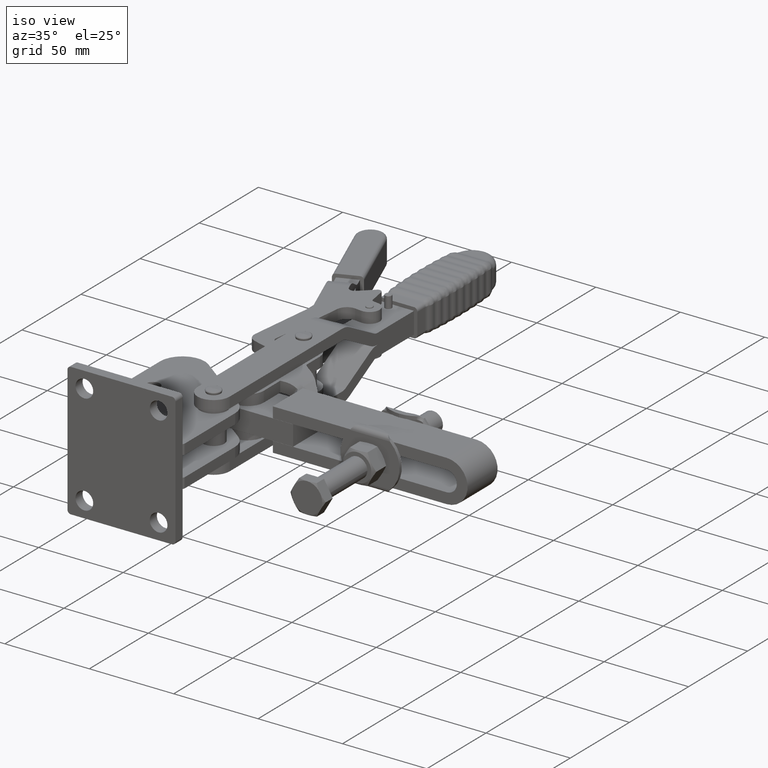
[diagram: clean part render]
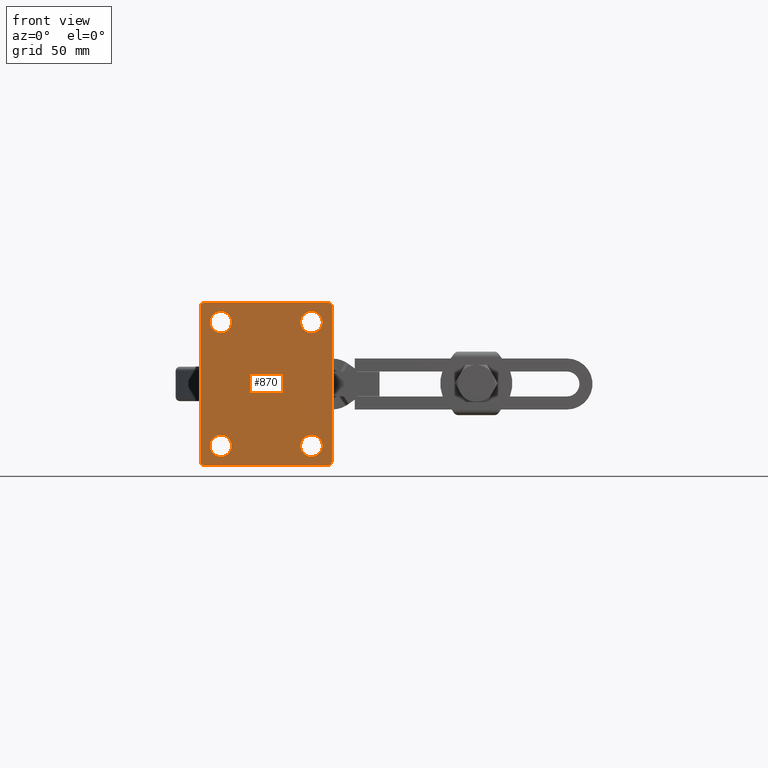
[diagram: tour spotlight — one face highlighted and labeled with its STEP entity id]
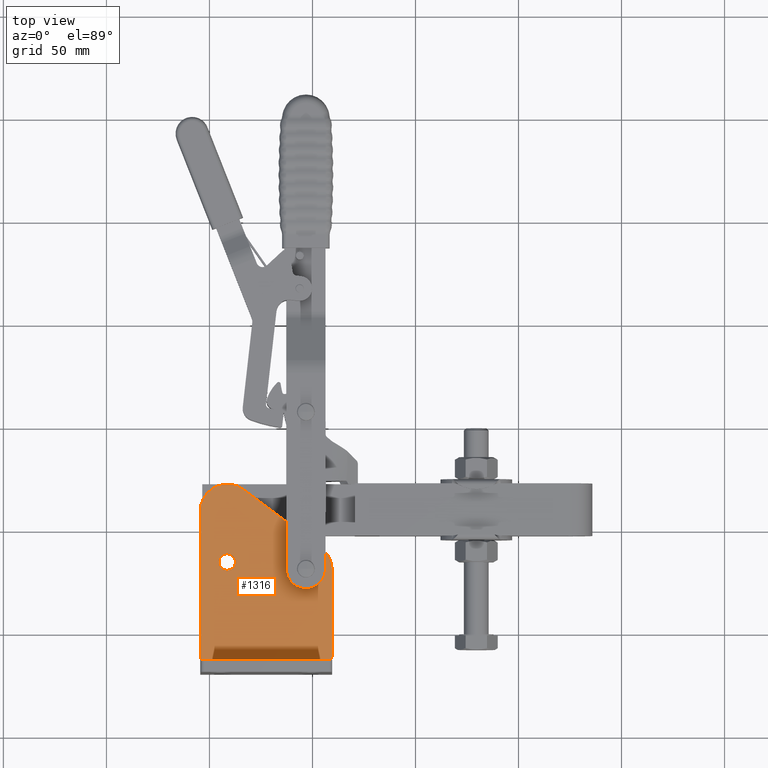
[diagram: tour spotlight — one face highlighted and labeled with its STEP entity id]
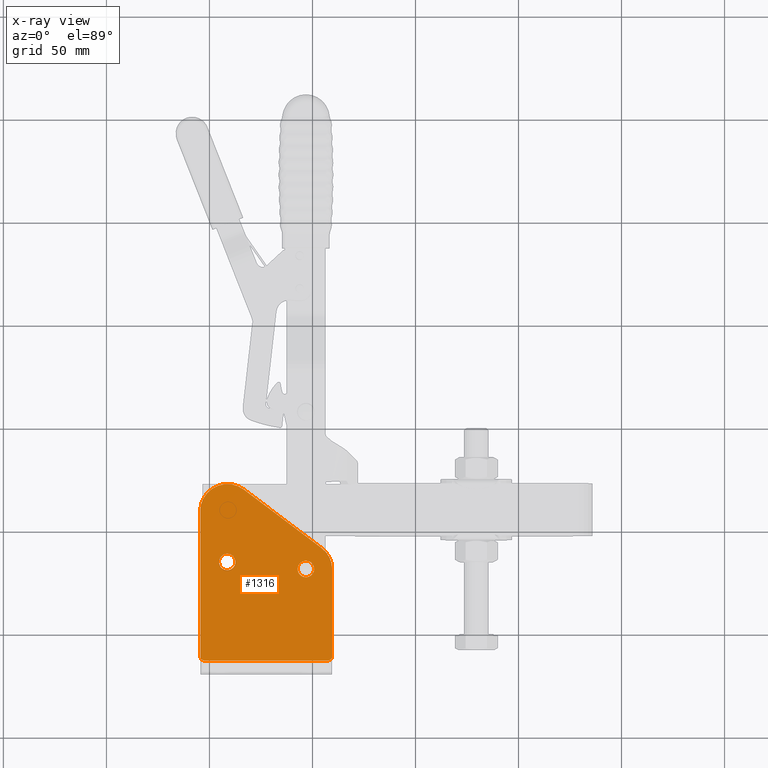
[diagram: x-ray of the same camera — body ghosted, this tour face saturated]
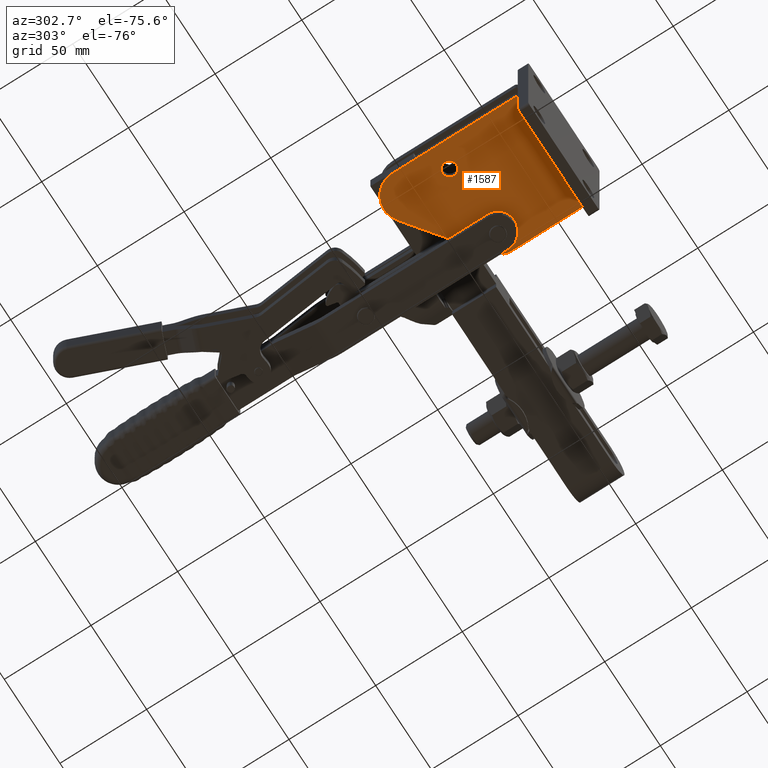
[diagram: tour spotlight — one face highlighted and labeled with its STEP entity id]
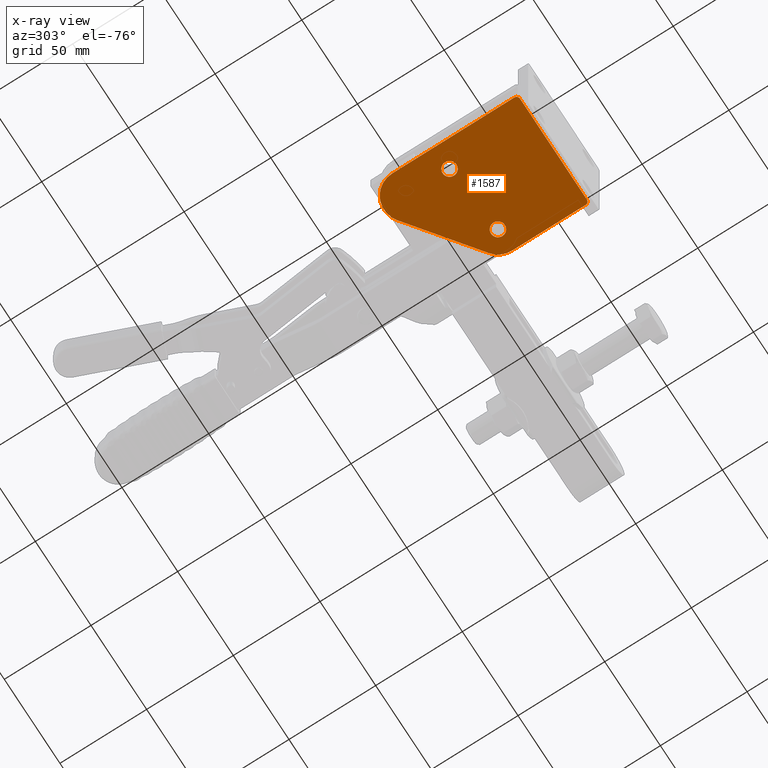
[diagram: x-ray of the same camera — body ghosted, this tour face saturated]
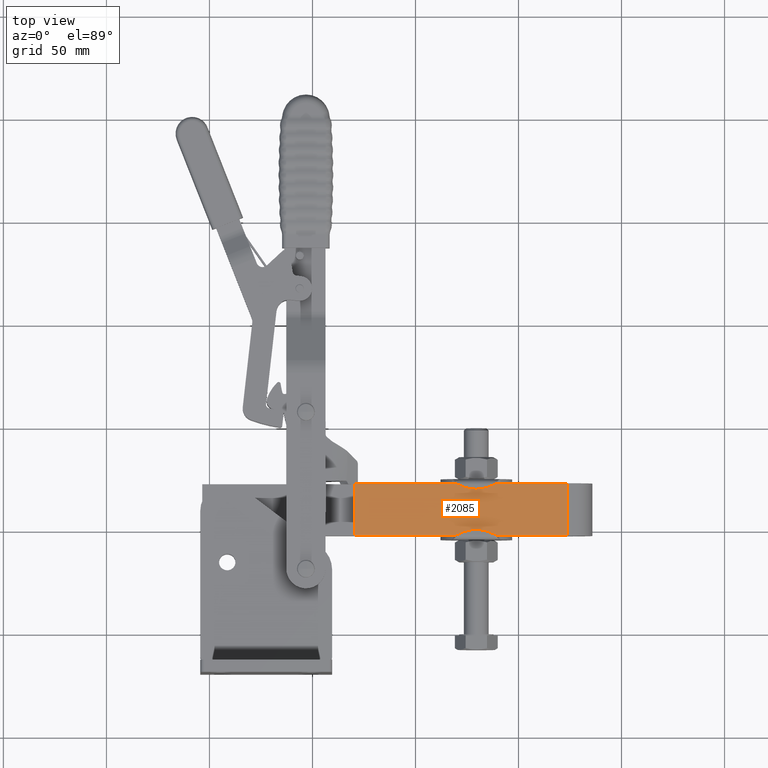
[diagram: tour spotlight — one face highlighted and labeled with its STEP entity id]
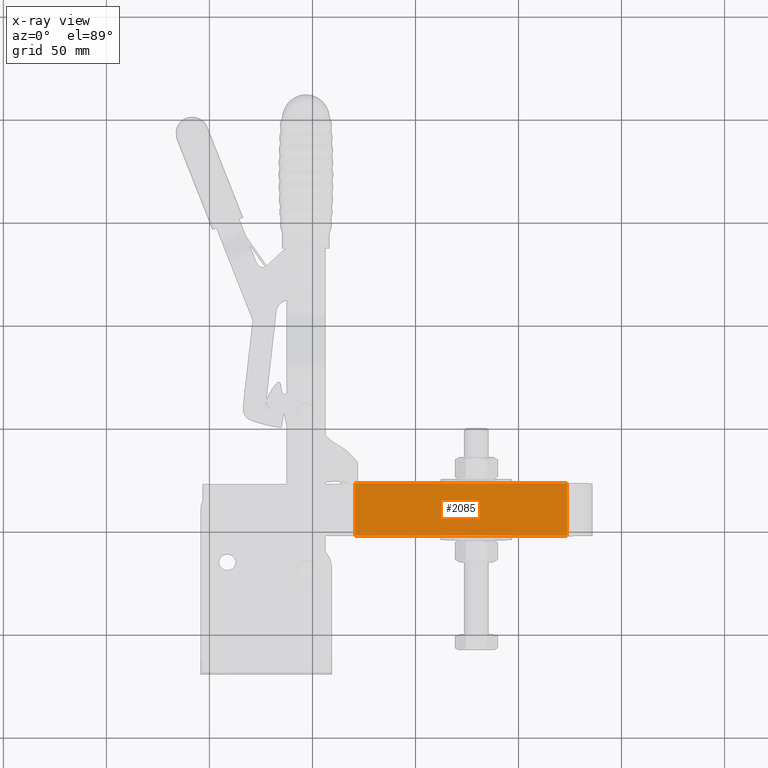
[diagram: x-ray of the same camera — body ghosted, this tour face saturated]
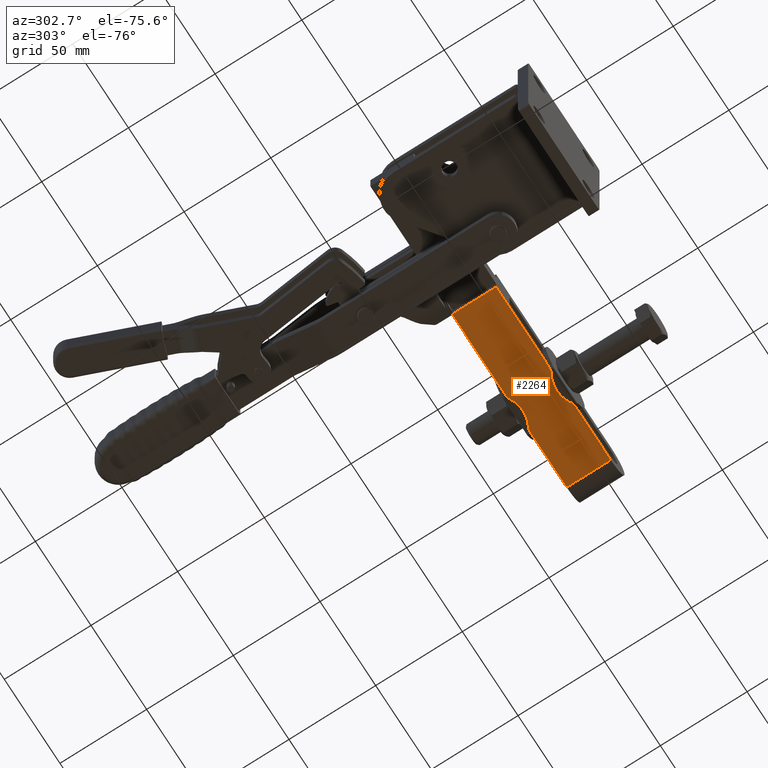
[diagram: tour spotlight — one face highlighted and labeled with its STEP entity id]
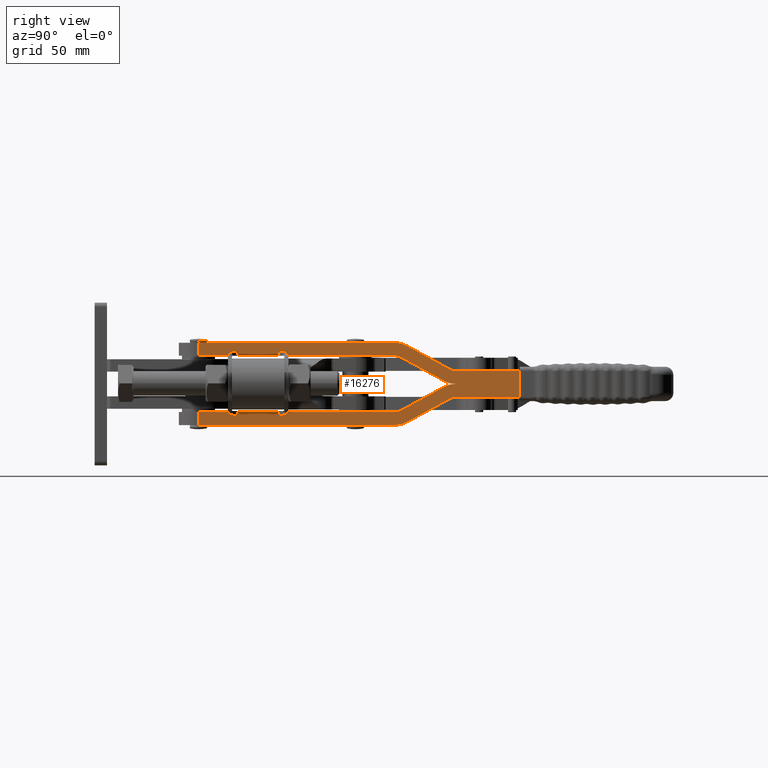
[diagram: tour spotlight — one face highlighted and labeled with its STEP entity id]
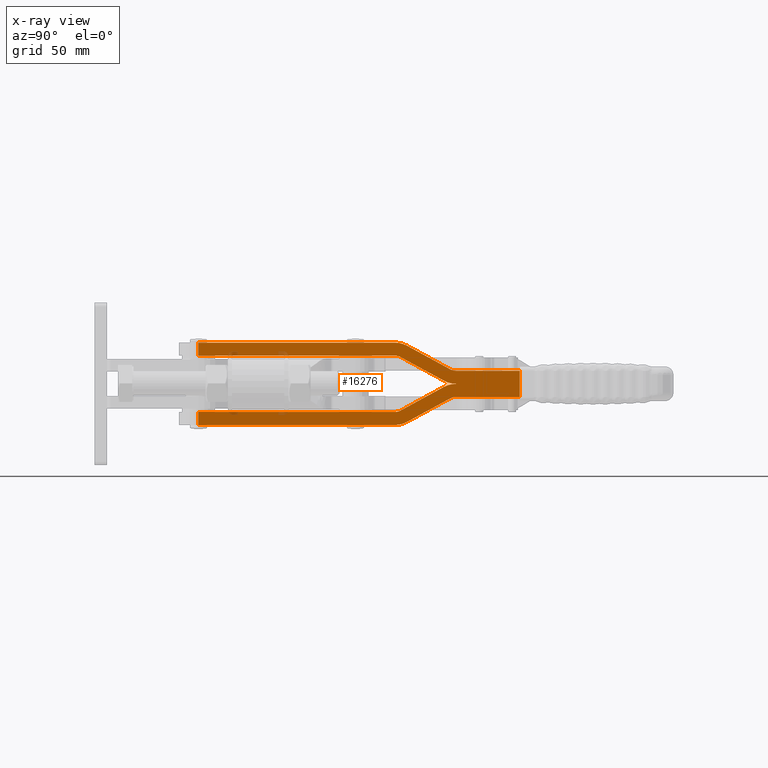
[diagram: x-ray of the same camera — body ghosted, this tour face saturated]
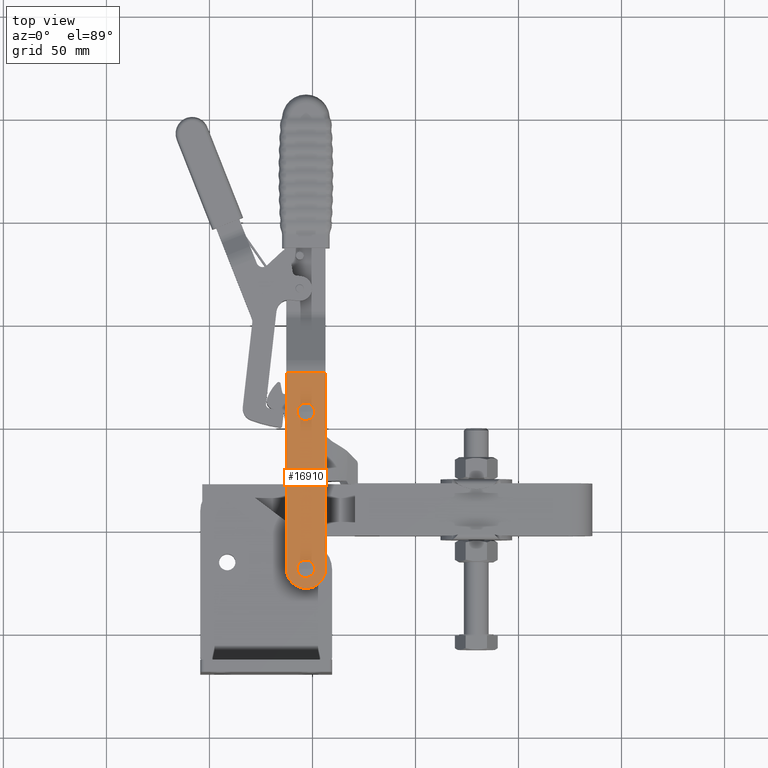
[diagram: tour spotlight — one face highlighted and labeled with its STEP entity id]
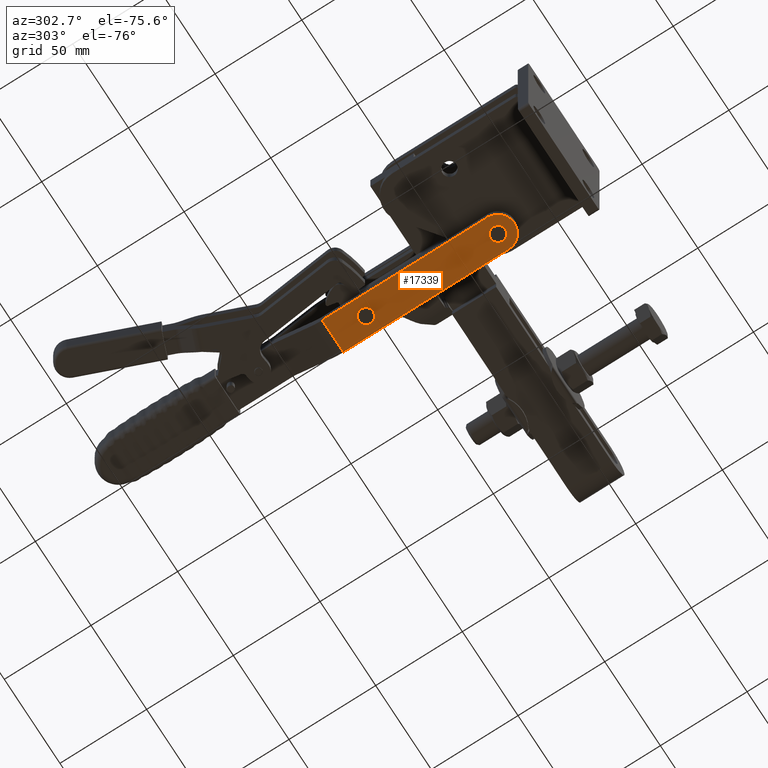
[diagram: tour spotlight — one face highlighted and labeled with its STEP entity id]
A machine part: a face-by-face anatomy tour. The part has 695 B-rep faces; the first image is the clean iso view, then the 8 largest visible faces are spotlighted one at a time (largest first), each with its STEP entity span.

Face 1 — front view, entity #870. In plain terms, the highlighted planar face has unit normal (0, -1, 0).
Definition (entity closure, byte-faithful):
#447=CARTESIAN_POINT('',(99.511439388011368,130.750047288092900,50.075000000000031));
#448=VERTEX_POINT('',#447);
#464=CARTESIAN_POINT('',(99.511439388011368,130.750047288092900,39.575000000000024));
#465=VERTEX_POINT('',#464);
#472=CARTESIAN_POINT('',(99.511439388011368,130.750047288092900,44.825000000000024));
#473=DIRECTION('',(0.0,1.0,0.0));
#474=DIRECTION('',(0.0,0.0,1.0));
#475=AXIS2_PLACEMENT_3D('',#472,#473,#474);
#476=CIRCLE('',#475,5.250000000000000);
#477=EDGE_CURVE('',#448,#465,#476,.T.);
#510=CARTESIAN_POINT('',(55.511439388011361,130.750047288092900,-9.924999999999971));
#511=VERTEX_POINT('',#510);
#527=CARTESIAN_POINT('',(55.511439388011368,130.750047288092900,-20.424999999999972));
#528=VERTEX_POINT('',#527);
#535=CARTESIAN_POINT('',(55.511439388011361,130.750047288092900,-15.174999999999972));
#536=DIRECTION('',(0.0,1.0,0.0));
#537=DIRECTION('',(0.0,0.0,1.0));
#538=AXIS2_PLACEMENT_3D('',#535,#536,#537);
#539=CIRCLE('',#538,5.250000000000000);
#540=EDGE_CURVE('',#511,#528,#539,.T.);
#573=CARTESIAN_POINT('',(55.511439388011361,130.750047288092900,50.075000000000031));
#574=VERTEX_POINT('',#573);
#590=CARTESIAN_POINT('',(55.511439388011368,130.750047288092900,39.575000000000024));
#591=VERTEX_POINT('',#590);
#598=CARTESIAN_POINT('',(55.511439388011361,130.750047288092900,44.825000000000024));
#599=DIRECTION('',(0.0,1.0,0.0));
#600=DIRECTION('',(0.0,0.0,1.0));
#601=AXIS2_PLACEMENT_3D('',#598,#599,#600);
#602=CIRCLE('',#601,5.250000000000000);
#603=EDGE_CURVE('',#574,#591,#602,.T.);
#636=CARTESIAN_POINT('',(99.511439388011368,130.750047288092900,-9.924999999999972));
#637=VERTEX_POINT('',#636);
#653=CARTESIAN_POINT('',(99.511439388011368,130.750047288092900,-20.424999999999972));
#654=VERTEX_POINT('',#653);
#661=CARTESIAN_POINT('',(99.511439388011368,130.750047288092900,-15.174999999999972));
#662=DIRECTION('',(0.0,1.0,0.0));
#663=DIRECTION('',(0.0,0.0,1.0));
#664=AXIS2_PLACEMENT_3D('',#661,#662,#663);
#665=CIRCLE('',#664,5.250000000000000);
#666=EDGE_CURVE('',#637,#654,#665,.T.);
#755=CARTESIAN_POINT('',(77.511439388011354,130.750047288092900,14.825000000000035));
#756=DIRECTION('',(0.0,-1.0,0.0));
#757=DIRECTION('',(0.0,0.0,1.0));
#758=AXIS2_PLACEMENT_3D('',#755,#756,#757);
#759=PLANE('',#758);
#760=CARTESIAN_POINT('',(45.511439388011361,130.750047288092900,-22.674999999999976));
#761=VERTEX_POINT('',#760);
#762=CARTESIAN_POINT('',(45.511439388011361,130.750047288092900,52.325000000000031));
#763=VERTEX_POINT('',#762);
#764=CARTESIAN_POINT('',(45.511439388011361,130.750047288092900,-22.674999999999976));
#765=DIRECTION('',(0.0,0.0,1.0));
#766=VECTOR('',#765,75.0);
#767=LINE('',#764,#766);
#768=EDGE_CURVE('',#761,#763,#767,.T.);
#769=ORIENTED_EDGE('',*,*,#768,.F.);
#770=CARTESIAN_POINT('',(47.511439388011361,130.750047288092900,-24.674999999999976));
#771=VERTEX_POINT('',#770);
#772=CARTESIAN_POINT('',(47.511439388011368,130.750047288092900,-22.674999999999955));
#773=DIRECTION('',(0.0,1.0,0.0));
#774=DIRECTION('',(1.0,0.0,0.0));
#775=AXIS2_PLACEMENT_3D('',#772,#773,#774);
#776=CIRCLE('',#775,2.000000000000015);
#777=EDGE_CURVE('',#771,#761,#776,.T.);
#778=ORIENTED_EDGE('',*,*,#777,.F.);
#779=CARTESIAN_POINT('',(107.511439388011370,130.750047288092900,-24.674999999999969));
#780=VERTEX_POINT('',#779);
#781=CARTESIAN_POINT('',(107.511439388011370,130.750047288092900,-24.674999999999969));
#782=DIRECTION('',(-1.0,0.0,0.0));
#783=VECTOR('',#782,60.000000000000007);
#784=LINE('',#781,#783);
#785=EDGE_CURVE('',#780,#771,#784,.T.);
#786=ORIENTED_EDGE('',*,*,#785,.F.);
#787=CARTESIAN_POINT('',(109.511439388011370,130.750047288092900,-22.674999999999955));
#788=VERTEX_POINT('',#787);
#789=CARTESIAN_POINT('',(107.511439388011370,130.750047288092900,-22.674999999999965));
#790=DIRECTION('',(0.0,1.0,0.0));
#791=DIRECTION('',(0.0,0.0,1.0));
#792=AXIS2_PLACEMENT_3D('',#789,#790,#791);
#793=CIRCLE('',#792,1.999999999999997);
#794=EDGE_CURVE('',#788,#780,#793,.T.);
#795=ORIENTED_EDGE('',*,*,#794,.F.);
#796=CARTESIAN_POINT('',(109.511439388011370,130.750047288092900,52.325000000000031));
#797=VERTEX_POINT('',#796);
#798=CARTESIAN_POINT('',(109.511439388011370,130.750047288092900,52.325000000000031));
#799=DIRECTION('',(0.0,0.0,-1.0));
#800=VECTOR('',#799,74.999999999999986);
#801=LINE('',#798,#800);
#802=EDGE_CURVE('',#797,#788,#801,.T.);
#803=ORIENTED_EDGE('',*,*,#802,.F.);
#804=CARTESIAN_POINT('',(107.511439388011350,130.750047288092900,54.325000000000038));
#805=VERTEX_POINT('',#804);
#806=CARTESIAN_POINT('',(107.511439388011350,130.750047288092900,52.325000000000024));
#807=DIRECTION('',(0.0,1.0,0.0));
#808=DIRECTION('',(-1.0,0.0,0.0));
#809=AXIS2_PLACEMENT_3D('',#806,#807,#808);
#810=CIRCLE('',#809,2.000000000000011);
#811=EDGE_CURVE('',#805,#797,#810,.T.);
#812=ORIENTED_EDGE('',*,*,#811,.F.);
#813=CARTESIAN_POINT('',(47.511439388011361,130.750047288092900,54.325000000000038));
#814=VERTEX_POINT('',#813);
#815=CARTESIAN_POINT('',(47.511439388011361,130.750047288092900,54.325000000000038));
#816=DIRECTION('',(1.0,0.0,0.0));
#817=VECTOR('',#816,59.999999999999993);
#818=LINE('',#815,#817);
#819=EDGE_CURVE('',#814,#805,#818,.T.);
#820=ORIENTED_EDGE('',*,*,#819,.F.);
#821=CARTESIAN_POINT('',(47.511439388011382,130.750047288092900,52.325000000000017));
#822=DIRECTION('',(0.0,1.0,0.0));
#823=DIRECTION('',(0.0,0.0,-1.0));
#824=AXIS2_PLACEMENT_3D('',#821,#822,#823);
#825=CIRCLE('',#824,2.000000000000020);
#826=EDGE_CURVE('',#763,#814,#825,.T.);
#827=ORIENTED_EDGE('',*,*,#826,.F.);
#828=EDGE_LOOP('',(#769,#778,#786,#795,#803,#812,#820,#827));
#829=FACE_OUTER_BOUND('',#828,.T.);
#830=ORIENTED_EDGE('',*,*,#477,.T.);
#831=CARTESIAN_POINT('',(99.511439388011368,130.750047288092900,44.825000000000024));
#832=DIRECTION('',(0.0,1.0,0.0));
#833=DIRECTION('',(0.0,0.0,1.0));
#834=AXIS2_PLACEMENT_3D('',#831,#832,#833);
#835=CIRCLE('',#834,5.250000000000000);
#836=EDGE_CURVE('',#465,#448,#835,.T.);
#837=ORIENTED_EDGE('',*,*,#836,.T.);
#838=EDGE_LOOP('',(#830,#837));
#839=FACE_BOUND('',#838,.T.);
#840=ORIENTED_EDGE('',*,*,#540,.T.);
#841=CARTESIAN_POINT('',(55.511439388011361,130.750047288092900,-15.174999999999972));
#842=DIRECTION('',(0.0,1.0,0.0));
#843=DIRECTION('',(0.0,0.0,1.0));
#844=AXIS2_PLACEMENT_3D('',#841,#842,#843);
#845=CIRCLE('',#844,5.250000000000000);
#846=EDGE_CURVE('',#528,#511,#845,.T.);
#847=ORIENTED_EDGE('',*,*,#846,.T.);
#848=EDGE_LOOP('',(#840,#847));
#849=FACE_BOUND('',#848,.T.);
#850=ORIENTED_EDGE('',*,*,#603,.T.);
#851=CARTESIAN_POINT('',(55.511439388011361,130.750047288092900,44.825000000000024));
#852=DIRECTION('',(0.0,1.0,0.0));
#853=DIRECTION('',(0.0,0.0,1.0));
#854=AXIS2_PLACEMENT_3D('',#851,#852,#853);
#855=CIRCLE('',#854,5.250000000000000);
#856=EDGE_CURVE('',#591,#574,#855,.T.);
#857=ORIENTED_EDGE('',*,*,#856,.T.);
#858=EDGE_LOOP('',(#850,#857));
#859=FACE_BOUND('',#858,.T.);
#860=ORIENTED_EDGE('',*,*,#666,.T.);
#861=CARTESIAN_POINT('',(99.511439388011368,130.750047288092900,-15.174999999999972));
#862=DIRECTION('',(0.0,1.0,0.0));
#863=DIRECTION('',(0.0,0.0,1.0));
#864=AXIS2_PLACEMENT_3D('',#861,#862,#863);
#865=CIRCLE('',#864,5.250000000000000);
#866=EDGE_CURVE('',#654,#637,#865,.T.);
#867=ORIENTED_EDGE('',*,*,#866,.T.);
#868=EDGE_LOOP('',(#860,#867));
#869=FACE_BOUND('',#868,.T.);
#870=ADVANCED_FACE('',(#829,#839,#849,#859,#869),#759,.T.);

Face 2 — top view, entity #1316. An x-ray twin of the same camera follows (body ghosted, this face saturated) — the face is partly hidden behind the body. In plain terms, the highlighted planar face has unit normal (0, 0, -1).
Definition (entity closure, byte-faithful):
#88=CARTESIAN_POINT('',(108.925652950384460,137.335833725719820,26.825000000000095));
#89=VERTEX_POINT('',#88);
#98=CARTESIAN_POINT('',(107.511439388011370,136.750047288092930,26.825000000000095));
#99=VERTEX_POINT('',#98);
#100=CARTESIAN_POINT('',(107.511439388011370,138.750047288092930,26.825000000000095));
#101=DIRECTION('',(-1.903895E-017,1.903895E-017,-1.000000000000000));
#102=DIRECTION('',(0.707106781186548,-0.707106781186547,-2.692514E-017));
#103=AXIS2_PLACEMENT_3D('',#100,#101,#102);
#104=CIRCLE('',#103,2.0);
#105=EDGE_CURVE('',#89,#99,#104,.T.);
#132=CARTESIAN_POINT('',(46.097225825638262,137.335833725719880,26.825000000000095));
#133=VERTEX_POINT('',#132);
#149=CARTESIAN_POINT('',(47.511439388011354,136.750047288092930,26.825000000000099));
#150=VERTEX_POINT('',#149);
#157=CARTESIAN_POINT('',(47.511439388011368,138.750047288092960,26.825000000000099));
#158=DIRECTION('',(-1.903895E-017,-1.903895E-017,-1.000000000000000));
#159=DIRECTION('',(-0.707106781186549,-0.707106781186546,2.692514E-017));
#160=AXIS2_PLACEMENT_3D('',#157,#158,#159);
#161=CIRCLE('',#160,2.0);
#162=EDGE_CURVE('',#150,#133,#161,.T.);
#172=CARTESIAN_POINT('',(54.631439388011380,184.560047288092930,26.825000000000095));
#173=VERTEX_POINT('',#172);
#182=CARTESIAN_POINT('',(62.631439388011387,184.560047288092930,26.825000000000099));
#183=VERTEX_POINT('',#182);
#184=CARTESIAN_POINT('',(58.631439388011380,184.560047288092930,26.825000000000099));
#185=DIRECTION('',(0.0,0.0,-1.0));
#186=DIRECTION('',(-1.0,0.0,0.0));
#187=AXIS2_PLACEMENT_3D('',#184,#185,#186);
#188=CIRCLE('',#187,4.0);
#189=EDGE_CURVE('',#183,#173,#188,.T.);
#382=CARTESIAN_POINT('',(92.811439388011436,181.150047288092790,26.825000000000102));
#383=VERTEX_POINT('',#382);
#392=CARTESIAN_POINT('',(100.811439388011440,181.150047288092790,26.825000000000102));
#393=VERTEX_POINT('',#392);
#394=CARTESIAN_POINT('',(96.811439388011436,181.150047288092790,26.825000000000102));
#395=DIRECTION('',(0.0,0.0,-1.0));
#396=DIRECTION('',(1.0,0.0,0.0));
#397=AXIS2_PLACEMENT_3D('',#394,#395,#396);
#398=CIRCLE('',#397,4.0);
#399=EDGE_CURVE('',#393,#383,#398,.T.);
#1223=CARTESIAN_POINT('',(96.811439388011436,181.150047288092790,26.825000000000102));
#1224=DIRECTION('',(0.0,0.0,-1.0));
#1225=DIRECTION('',(-1.0,0.0,0.0));
#1226=AXIS2_PLACEMENT_3D('',#1223,#1224,#1225);
#1227=PLANE('',#1226);
#1228=CARTESIAN_POINT('',(109.511439388011370,138.750047288092960,26.825000000000095));
#1229=VERTEX_POINT('',#1228);
#1230=CARTESIAN_POINT('',(107.511439388011370,138.750047288092930,26.825000000000095));
#1231=DIRECTION('',(-1.903895E-017,1.903895E-017,-1.000000000000000));
#1232=DIRECTION('',(0.707106781186548,-0.707106781186547,-2.692514E-017));
#1233=AXIS2_PLACEMENT_3D('',#1230,#1231,#1232);
#1234=CIRCLE('',#1233,2.0);
#1235=EDGE_CURVE('',#1229,#89,#1234,.T.);
#1236=ORIENTED_EDGE('',*,*,#1235,.F.);
#1237=CARTESIAN_POINT('',(109.511439388011370,181.150047288092880,26.825000000000095));
#1238=VERTEX_POINT('',#1237);
#1239=CARTESIAN_POINT('',(109.511439388011370,181.150047288092880,26.825000000000095));
#1240=DIRECTION('',(0.0,-1.0,0.0));
#1241=VECTOR('',#1240,42.399999999999920);
#1242=LINE('',#1239,#1241);
#1243=EDGE_CURVE('',#1238,#1229,#1242,.T.);
#1244=ORIENTED_EDGE('',*,*,#1243,.F.);
#1245=CARTESIAN_POINT('',(104.448608922650780,191.297147440312590,26.825000000000095));
#1246=VERTEX_POINT('',#1245);
#1247=CARTESIAN_POINT('',(96.811439388011365,181.150047288092940,26.825000000000095));
#1248=DIRECTION('',(0.0,0.0,-1.0));
#1249=DIRECTION('',(1.0,0.0,0.0));
#1250=AXIS2_PLACEMENT_3D('',#1247,#1248,#1249);
#1251=CIRCLE('',#1250,12.700000000000006);
#1252=EDGE_CURVE('',#1246,#1238,#1251,.T.);
#1253=ORIENTED_EDGE('',*,*,#1252,.F.);
#1254=CARTESIAN_POINT('',(66.649284888581491,219.746639572289720,26.825000000000099));
#1255=VERTEX_POINT('',#1254);
#1256=CARTESIAN_POINT('',(66.649284888581491,219.746639572289720,26.825000000000099));
#1257=DIRECTION('',(0.798984263954302,-0.601351931861370,-7.509558E-017));
#1258=VECTOR('',#1257,47.309222145370313);
#1259=LINE('',#1256,#1258);
#1260=EDGE_CURVE('',#1255,#1246,#1259,.T.);
#1261=ORIENTED_EDGE('',*,*,#1260,.F.);
#1262=CARTESIAN_POINT('',(45.511439388011397,209.200047288092950,26.825000000000099));
#1263=VERTEX_POINT('',#1262);
#1264=CARTESIAN_POINT('',(58.711439388011392,209.200047288092920,26.825000000000099));
#1265=DIRECTION('',(-1.376989E-017,-1.829532E-017,-1.0));
#1266=DIRECTION('',(0.601351931861370,0.798984263954302,-2.289822E-017));
#1267=AXIS2_PLACEMENT_3D('',#1264,#1265,#1266);
#1268=CIRCLE('',#1267,13.200000000000001);
#1269=EDGE_CURVE('',#1263,#1255,#1268,.T.);
#1270=ORIENTED_EDGE('',*,*,#1269,.F.);
#1271=CARTESIAN_POINT('',(45.511439388011368,138.750047288092960,26.825000000000099));
#1272=VERTEX_POINT('',#1271);
#1273=CARTESIAN_POINT('',(45.511439388011368,138.750047288092960,26.825000000000099));
#1274=DIRECTION('',(0.0,1.0,0.0));
#1275=VECTOR('',#1274,70.449999999999989);
#1276=LINE('',#1273,#1275);
#1277=EDGE_CURVE('',#1272,#1263,#1276,.T.);
#1278=ORIENTED_EDGE('',*,*,#1277,.F.);
#1279=CARTESIAN_POINT('',(47.511439388011368,138.750047288092960,26.825000000000099));
#1280=DIRECTION('',(-1.903895E-017,-1.903895E-017,-1.000000000000000));
#1281=DIRECTION('',(-0.707106781186549,-0.707106781186546,2.692514E-017));
#1282=AXIS2_PLACEMENT_3D('',#1279,#1280,#1281);
#1283=CIRCLE('',#1282,2.0);
#1284=EDGE_CURVE('',#133,#1272,#1283,.T.);
#1285=ORIENTED_EDGE('',*,*,#1284,.F.);
#1286=ORIENTED_EDGE('',*,*,#162,.F.);
#1287=CARTESIAN_POINT('',(107.511439388011370,136.750047288092930,26.825000000000095));
#1288=DIRECTION('',(-1.0,0.0,0.0));
#1289=VECTOR('',#1288,60.000000000000014);
#1290=LINE('',#1287,#1289);
#1291=EDGE_CURVE('',#99,#150,#1290,.T.);
#1292=ORIENTED_EDGE('',*,*,#1291,.F.);
#1293=ORIENTED_EDGE('',*,*,#105,.F.);
#1294=EDGE_LOOP('',(#1236,#1244,#1253,#1261,#1270,#1278,#1285,#1286,#1292,#1293));
#1295=FACE_OUTER_BOUND('',#1294,.T.);
#1296=CARTESIAN_POINT('',(96.811439388011436,181.150047288092790,26.825000000000102));
#1297=DIRECTION('',(0.0,0.0,-1.0));
#1298=DIRECTION('',(1.0,0.0,0.0));
#1299=AXIS2_PLACEMENT_3D('',#1296,#1297,#1298);
#1300=CIRCLE('',#1299,4.0);
#1301=EDGE_CURVE('',#383,#393,#1300,.T.);
#1302=ORIENTED_EDGE('',*,*,#1301,.T.);
#1303=ORIENTED_EDGE('',*,*,#399,.T.);
#1304=EDGE_LOOP('',(#1302,#1303));
#1305=FACE_BOUND('',#1304,.T.);
#1306=ORIENTED_EDGE('',*,*,#189,.T.);
#1307=CARTESIAN_POINT('',(58.631439388011380,184.560047288092930,26.825000000000099));
#1308=DIRECTION('',(0.0,0.0,-1.0));
#1309=DIRECTION('',(-1.0,0.0,0.0));
#1310=AXIS2_PLACEMENT_3D('',#1307,#1308,#1309);
#1311=CIRCLE('',#1310,4.0);
#1312=EDGE_CURVE('',#173,#183,#1311,.T.);
#1313=ORIENTED_EDGE('',*,*,#1312,.T.);
#1314=EDGE_LOOP('',(#1306,#1313));
#1315=FACE_BOUND('',#1314,.T.);
#1316=ADVANCED_FACE('',(#1295,#1305,#1315),#1227,.F.);

Face 3 — auxiliary view, entity #1587. An x-ray twin of the same camera follows (body ghosted, this face saturated) — the face is partly hidden behind the body. In plain terms, the highlighted planar face has unit normal (0, 0, 1).
Definition (entity closure, byte-faithful):
#216=CARTESIAN_POINT('',(108.925652950384460,137.335833725719790,2.825000000000029));
#217=VERTEX_POINT('',#216);
#233=CARTESIAN_POINT('',(107.511439388011370,136.750047288092870,2.825000000000030));
#234=VERTEX_POINT('',#233);
#241=CARTESIAN_POINT('',(107.511439388011370,138.750047288092900,2.825000000000030));
#242=DIRECTION('',(1.308855E-017,-1.308855E-017,1.0));
#243=DIRECTION('',(0.707106781186548,-0.707106781186547,-1.851000E-017));
#244=AXIS2_PLACEMENT_3D('',#241,#242,#243);
#245=CIRCLE('',#244,2.0);
#246=EDGE_CURVE('',#234,#217,#245,.T.);
#256=CARTESIAN_POINT('',(46.097225825638269,137.335833725719820,2.825000000000031));
#257=VERTEX_POINT('',#256);
#266=CARTESIAN_POINT('',(47.511439388011361,136.750047288092900,2.825000000000031));
#267=VERTEX_POINT('',#266);
#268=CARTESIAN_POINT('',(47.511439388011368,138.750047288092900,2.825000000000031));
#269=DIRECTION('',(1.308855E-017,1.308855E-017,1.0));
#270=DIRECTION('',(-0.707106781186550,-0.707106781186545,1.851000E-017));
#271=AXIS2_PLACEMENT_3D('',#268,#269,#270);
#272=CIRCLE('',#271,2.0);
#273=EDGE_CURVE('',#257,#267,#272,.T.);
#300=CARTESIAN_POINT('',(54.631439388011401,184.560047288092900,2.825000000000031));
#301=VERTEX_POINT('',#300);
#317=CARTESIAN_POINT('',(62.631439388011401,184.560047288092900,2.825000000000031));
#318=VERTEX_POINT('',#317);
#325=CARTESIAN_POINT('',(58.631439388011401,184.560047288092900,2.825000000000031));
#326=DIRECTION('',(0.0,0.0,1.0));
#327=DIRECTION('',(-1.0,0.0,0.0));
#328=AXIS2_PLACEMENT_3D('',#325,#326,#327);
#329=CIRCLE('',#328,4.0);
#330=EDGE_CURVE('',#301,#318,#329,.T.);
#384=CARTESIAN_POINT('',(92.811439388011436,181.150047288092790,2.825000000000030));
#385=VERTEX_POINT('',#384);
#401=CARTESIAN_POINT('',(100.811439388011440,181.150047288092790,2.825000000000031));
#402=VERTEX_POINT('',#401);
#409=CARTESIAN_POINT('',(96.811439388011436,181.150047288092790,2.825000000000030));
#410=DIRECTION('',(0.0,0.0,1.0));
#411=DIRECTION('',(1.0,0.0,0.0));
#412=AXIS2_PLACEMENT_3D('',#409,#410,#411);
#413=CIRCLE('',#412,4.0);
#414=EDGE_CURVE('',#385,#402,#413,.T.);
#1323=CARTESIAN_POINT('',(96.811439388011436,181.150047288092790,2.825000000000030));
#1324=DIRECTION('',(0.0,0.0,1.0));
#1325=DIRECTION('',(1.0,0.0,0.0));
#1326=AXIS2_PLACEMENT_3D('',#1323,#1324,#1325);
#1327=CIRCLE('',#1326,4.0);
#1328=EDGE_CURVE('',#402,#385,#1327,.T.);
#1384=CARTESIAN_POINT('',(45.511439388011368,138.750047288092900,2.825000000000031));
#1385=VERTEX_POINT('',#1384);
#1400=CARTESIAN_POINT('',(45.511439388011425,209.200047288092890,2.825000000000031));
#1401=VERTEX_POINT('',#1400);
#1408=CARTESIAN_POINT('',(45.511439388011425,209.200047288092890,2.825000000000031));
#1409=DIRECTION('',(0.0,-1.0,0.0));
#1410=VECTOR('',#1409,70.449999999999989);
#1411=LINE('',#1408,#1410);
#1412=EDGE_CURVE('',#1401,#1385,#1411,.T.);
#1433=CARTESIAN_POINT('',(109.511439388011380,181.150047288092850,2.825000000000030));
#1434=VERTEX_POINT('',#1433);
#1441=CARTESIAN_POINT('',(104.448608922650810,191.297147440312530,2.825000000000030));
#1442=VERTEX_POINT('',#1441);
#1443=CARTESIAN_POINT('',(96.811439388011394,181.150047288092880,2.825000000000030));
#1444=DIRECTION('',(0.0,0.0,1.0));
#1445=DIRECTION('',(1.0,0.0,0.0));
#1446=AXIS2_PLACEMENT_3D('',#1443,#1444,#1445);
#1447=CIRCLE('',#1446,12.700000000000006);
#1448=EDGE_CURVE('',#1434,#1442,#1447,.T.);
#1473=CARTESIAN_POINT('',(66.649284888581519,219.746639572289690,2.825000000000031));
#1474=VERTEX_POINT('',#1473);
#1475=CARTESIAN_POINT('',(104.448608922650810,191.297147440312530,2.825000000000030));
#1476=DIRECTION('',(-0.798984263954302,0.601351931861370,9.386948E-018));
#1477=VECTOR('',#1476,47.309222145370335);
#1478=LINE('',#1475,#1477);
#1479=EDGE_CURVE('',#1442,#1474,#1478,.T.);
#1503=CARTESIAN_POINT('',(58.711439388011414,209.200047288092890,2.825000000000031));
#1504=DIRECTION('',(9.466268E-018,1.257733E-017,1.0));
#1505=DIRECTION('',(0.601351931861371,0.798984263954302,-1.574164E-017));
#1506=AXIS2_PLACEMENT_3D('',#1503,#1504,#1505);
#1507=CIRCLE('',#1506,13.200000000000001);
#1508=EDGE_CURVE('',#1474,#1401,#1507,.T.);
#1520=CARTESIAN_POINT('',(58.631439388011401,184.560047288092900,2.825000000000031));
#1521=DIRECTION('',(0.0,0.0,1.0));
#1522=DIRECTION('',(-1.0,0.0,0.0));
#1523=AXIS2_PLACEMENT_3D('',#1520,#1521,#1522);
#1524=CIRCLE('',#1523,4.0);
#1525=EDGE_CURVE('',#318,#301,#1524,.T.);
#1538=CARTESIAN_POINT('',(74.900793456416721,159.404332626899530,2.825000000000031));
#1539=DIRECTION('',(0.0,0.0,1.0));
#1540=DIRECTION('',(1.0,0.0,0.0));
#1541=AXIS2_PLACEMENT_3D('',#1538,#1539,#1540);
#1542=PLANE('',#1541);
#1543=ORIENTED_EDGE('',*,*,#246,.F.);
#1544=CARTESIAN_POINT('',(47.511439388011361,136.750047288092900,2.825000000000031));
#1545=DIRECTION('',(1.0,0.0,0.0));
#1546=VECTOR('',#1545,60.000000000000007);
#1547=LINE('',#1544,#1546);
#1548=EDGE_CURVE('',#267,#234,#1547,.T.);
#1549=ORIENTED_EDGE('',*,*,#1548,.F.);
#1550=ORIENTED_EDGE('',*,*,#273,.F.);
#1551=CARTESIAN_POINT('',(47.511439388011368,138.750047288092900,2.825000000000031));
#1552=DIRECTION('',(1.308855E-017,1.308855E-017,1.0));
#1553=DIRECTION('',(-0.707106781186550,-0.707106781186545,1.851000E-017));
#1554=AXIS2_PLACEMENT_3D('',#1551,#1552,#1553);
#1555=CIRCLE('',#1554,2.0);
#1556=EDGE_CURVE('',#1385,#257,#1555,.T.);
#1557=ORIENTED_EDGE('',*,*,#1556,.F.);
#1558=ORIENTED_EDGE('',*,*,#1412,.F.);
#1559=ORIENTED_EDGE('',*,*,#1508,.F.);
#1560=ORIENTED_EDGE('',*,*,#1479,.F.);
#1561=ORIENTED_EDGE('',*,*,#1448,.F.);
#1562=CARTESIAN_POINT('',(109.511439388011370,138.750047288092900,2.825000000000030));
#1563=VERTEX_POINT('',#1562);
#1564=CARTESIAN_POINT('',(109.511439388011370,138.750047288092900,2.825000000000030));
#1565=DIRECTION('',(0.0,1.0,0.0));
#1566=VECTOR('',#1565,42.399999999999949);
#1567=LINE('',#1564,#1566);
#1568=EDGE_CURVE('',#1563,#1434,#1567,.T.);
#1569=ORIENTED_EDGE('',*,*,#1568,.F.);
#1570=CARTESIAN_POINT('',(107.511439388011370,138.750047288092900,2.825000000000030));
#1571=DIRECTION('',(1.308855E-017,-1.308855E-017,1.0));
#1572=DIRECTION('',(0.707106781186548,-0.707106781186547,-1.851000E-017));
#1573=AXIS2_PLACEMENT_3D('',#1570,#1571,#1572);
#1574=CIRCLE('',#1573,2.0);
#1575=EDGE_CURVE('',#217,#1563,#1574,.T.);
#1576=ORIENTED_EDGE('',*,*,#1575,.F.);
#1577=EDGE_LOOP('',(#1543,#1549,#1550,#1557,#1558,#1559,#1560,#1561,#1569,#1576));
#1578=FACE_OUTER_BOUND('',#1577,.T.);
#1579=ORIENTED_EDGE('',*,*,#414,.T.);
#1580=ORIENTED_EDGE('',*,*,#1328,.T.);
#1581=EDGE_LOOP('',(#1579,#1580));
#1582=FACE_BOUND('',#1581,.T.);
#1583=ORIENTED_EDGE('',*,*,#1525,.T.);
#1584=ORIENTED_EDGE('',*,*,#330,.T.);
#1585=EDGE_LOOP('',(#1583,#1584));
#1586=FACE_BOUND('',#1585,.T.);
#1587=ADVANCED_FACE('',(#1578,#1582,#1586),#1542,.F.);

Face 4 — top view, entity #2085. An x-ray twin of the same camera follows (body ghosted, this face saturated) — the face is partly hidden behind the body. In plain terms, the highlighted planar face has unit normal (0, 0, 1).
Definition (entity closure, byte-faithful):
#2020=CARTESIAN_POINT('',(223.567369765978360,222.065809797764900,27.225000000000215));
#2021=VERTEX_POINT('',#2020);
#2029=CARTESIAN_POINT('',(223.454017975730040,196.666062724779180,27.225000000000215));
#2030=VERTEX_POINT('',#2029);
#2031=CARTESIAN_POINT('',(223.454017975730040,196.666062724779180,27.225000000000215));
#2032=DIRECTION('',(0.004462668907414,0.999990042243533,0.0));
#2033=VECTOR('',#2032,25.399999999999981);
#2034=LINE('',#2031,#2033);
#2035=EDGE_CURVE('',#2030,#2021,#2034,.T.);
#2055=CARTESIAN_POINT('',(223.454017975730040,196.666062724779180,27.225000000000215));
#2056=DIRECTION('',(0.0,0.0,1.0));
#2057=DIRECTION('',(-0.004462668907414,-0.999990042243533,0.0));
#2058=AXIS2_PLACEMENT_3D('',#2055,#2056,#2057);
#2059=PLANE('',#2058);
#2060=CARTESIAN_POINT('',(120.568395414894450,222.525464695228550,27.225000000000158));
#2061=VERTEX_POINT('',#2060);
#2062=CARTESIAN_POINT('',(223.567369765978360,222.065809797764900,27.225000000000215));
#2063=DIRECTION('',(-0.999990042243533,0.004462668907414,-5.518779E-016));
#2064=VECTOR('',#2063,103.000000000000010);
#2065=LINE('',#2062,#2064);
#2066=EDGE_CURVE('',#2021,#2061,#2065,.T.);
#2067=ORIENTED_EDGE('',*,*,#2066,.T.);
#2068=CARTESIAN_POINT('',(120.455043624646120,197.125717622242800,27.225000000000158));
#2069=VERTEX_POINT('',#2068);
#2070=CARTESIAN_POINT('',(120.455043624646120,197.125717622242800,27.225000000000158));
#2071=DIRECTION('',(0.004462668907415,0.999990042243533,0.0));
#2072=VECTOR('',#2071,25.400000000000009);
#2073=LINE('',#2070,#2072);
#2074=EDGE_CURVE('',#2069,#2061,#2073,.T.);
#2075=ORIENTED_EDGE('',*,*,#2074,.F.);
#2076=CARTESIAN_POINT('',(223.454017975730040,196.666062724779180,27.225000000000215));
#2077=DIRECTION('',(-0.999990042243533,0.004462668907414,-5.518779E-016));
#2078=VECTOR('',#2077,103.000000000000030);
#2079=LINE('',#2076,#2078);
#2080=EDGE_CURVE('',#2030,#2069,#2079,.T.);
#2081=ORIENTED_EDGE('',*,*,#2080,.F.);
#2082=ORIENTED_EDGE('',*,*,#2035,.T.);
#2083=EDGE_LOOP('',(#2067,#2075,#2081,#2082));
#2084=FACE_OUTER_BOUND('',#2083,.T.);
#2085=ADVANCED_FACE('',(#2084),#2059,.T.);

Face 5 — auxiliary view, entity #2264. In plain terms, the highlighted planar face has unit normal (-0, -0, -1).
Definition (entity closure, byte-faithful):
#2018=CARTESIAN_POINT('',(223.567369765978360,222.065809797764900,2.425000000000215));
#2019=VERTEX_POINT('',#2018);
#2037=CARTESIAN_POINT('',(223.454017975730040,196.666062724779180,2.425000000000215));
#2038=VERTEX_POINT('',#2037);
#2046=CARTESIAN_POINT('',(223.454017975730040,196.666062724779180,2.425000000000215));
#2047=DIRECTION('',(0.004462668907414,0.999990042243533,0.0));
#2048=VECTOR('',#2047,25.399999999999981);
#2049=LINE('',#2046,#2048);
#2050=EDGE_CURVE('',#2038,#2019,#2049,.T.);
#2217=CARTESIAN_POINT('',(120.568395414894450,222.525464695228550,2.425000000000162));
#2218=VERTEX_POINT('',#2217);
#2225=CARTESIAN_POINT('',(120.455043624646140,197.125717622242800,2.425000000000162));
#2226=VERTEX_POINT('',#2225);
#2227=CARTESIAN_POINT('',(120.455043624646140,197.125717622242800,2.425000000000162));
#2228=DIRECTION('',(0.004462668907414,0.999990042243533,0.0));
#2229=VECTOR('',#2228,25.400000000000009);
#2230=LINE('',#2227,#2229);
#2231=EDGE_CURVE('',#2226,#2218,#2230,.T.);
#2243=CARTESIAN_POINT('',(120.455043624646140,197.125717622242800,2.425000000000162));
#2244=DIRECTION('',(0.0,0.0,-1.0));
#2245=DIRECTION('',(0.004462668907414,0.999990042243533,0.0));
#2246=AXIS2_PLACEMENT_3D('',#2243,#2244,#2245);
#2247=PLANE('',#2246);
#2248=CARTESIAN_POINT('',(120.568395414894450,222.525464695228550,2.425000000000162));
#2249=DIRECTION('',(0.999990042243533,-0.004462668907414,5.173855E-016));
#2250=VECTOR('',#2249,103.000000000000010);
#2251=LINE('',#2248,#2250);
#2252=EDGE_CURVE('',#2218,#2019,#2251,.T.);
#2253=ORIENTED_EDGE('',*,*,#2252,.T.);
#2254=ORIENTED_EDGE('',*,*,#2050,.F.);
#2255=CARTESIAN_POINT('',(120.455043624646140,197.125717622242800,2.425000000000162));
#2256=DIRECTION('',(0.999990042243533,-0.004462668907414,5.173855E-016));
#2257=VECTOR('',#2256,103.000000000000010);
#2258=LINE('',#2255,#2257);
#2259=EDGE_CURVE('',#2226,#2038,#2258,.T.);
#2260=ORIENTED_EDGE('',*,*,#2259,.F.);
#2261=ORIENTED_EDGE('',*,*,#2231,.T.);
#2262=EDGE_LOOP('',(#2253,#2254,#2260,#2261));
#2263=FACE_OUTER_BOUND('',#2262,.T.);
#2264=ADVANCED_FACE('',(#2263),#2247,.T.);

Face 6 — right view, entity #16276. An x-ray twin of the same camera follows (body ghosted, this face saturated) — the face is partly hidden behind the body. In plain terms, the highlighted planar face has unit normal (1, 0, 0).
Definition (entity closure, byte-faithful):
#5671=CARTESIAN_POINT('',(106.336439388011430,181.150047288093900,-5.174999999999951));
#5672=VERTEX_POINT('',#5671);
#5680=CARTESIAN_POINT('',(106.336439388011410,181.150047288093900,1.175000000000050));
#5681=VERTEX_POINT('',#5680);
#5682=CARTESIAN_POINT('',(106.336439388011430,181.150047288093900,-5.174999999999951));
#5683=DIRECTION('',(0.0,0.0,1.0));
#5684=VECTOR('',#5683,6.350000000000001);
#5685=LINE('',#5682,#5684);
#5686=EDGE_CURVE('',#5672,#5681,#5685,.T.);
#8766=CARTESIAN_POINT('',(106.336439388011570,276.383780807241350,1.175000000000050));
#8767=VERTEX_POINT('',#8766);
#8768=CARTESIAN_POINT('',(106.336439388011410,181.150047288093900,1.175000000000050));
#8769=DIRECTION('',(0.0,1.0,0.0));
#8770=VECTOR('',#8769,95.233733519147449);
#8771=LINE('',#8768,#8770);
#8772=EDGE_CURVE('',#5681,#8767,#8771,.T.);
#8966=CARTESIAN_POINT('',(106.336439388011410,181.150047288094750,28.475000000000108));
#8967=VERTEX_POINT('',#8966);
#8984=CARTESIAN_POINT('',(106.336439388011570,276.383780807242150,28.475000000000072));
#8985=VERTEX_POINT('',#8984);
#8992=CARTESIAN_POINT('',(106.336439388011410,181.150047288094750,28.475000000000108));
#8993=DIRECTION('',(0.0,1.0,0.0));
#8994=VECTOR('',#8993,95.233733519147393);
#8995=LINE('',#8992,#8994);
#8996=EDGE_CURVE('',#8967,#8985,#8995,.T.);
#9441=CARTESIAN_POINT('',(106.336439388011630,337.100047288094860,21.175000000000068));
#9442=VERTEX_POINT('',#9441);
#9449=CARTESIAN_POINT('',(106.336439388011660,337.100047288094860,8.475000000000060));
#9450=VERTEX_POINT('',#9449);
#9451=CARTESIAN_POINT('',(106.336439388011660,337.100047288094860,8.475000000000060));
#9452=DIRECTION('',(0.0,0.0,1.0));
#9453=VECTOR('',#9452,12.700000000000008);
#9454=LINE('',#9451,#9453);
#9455=EDGE_CURVE('',#9450,#9442,#9454,.T.);
#16094=CARTESIAN_POINT('',(106.336439388011630,306.245680528520210,8.475000000000046));
#16095=VERTEX_POINT('',#16094);
#16096=CARTESIAN_POINT('',(106.336439388011660,337.100047288094860,8.475000000000060));
#16097=DIRECTION('',(0.0,-1.0,0.0));
#16098=VECTOR('',#16097,30.854366759574646);
#16099=LINE('',#16096,#16098);
#16100=EDGE_CURVE('',#9450,#16095,#16099,.T.);
#16134=CARTESIAN_POINT('',(106.336439388011580,290.634741958016040,4.787014135913067));
#16135=DIRECTION('',(1.0,0.0,0.0));
#16136=DIRECTION('',(0.0,-1.0,0.0));
#16137=AXIS2_PLACEMENT_3D('',#16134,#16135,#16136);
#16138=PLANE('',#16137);
#16139=ORIENTED_EDGE('',*,*,#9455,.T.);
#16140=CARTESIAN_POINT('',(106.336439388011630,306.245680528521010,21.175000000000068));
#16141=VERTEX_POINT('',#16140);
#16142=CARTESIAN_POINT('',(106.336439388011630,337.100047288094860,21.175000000000068));
#16143=DIRECTION('',(0.0,-1.0,0.0));
#16144=VECTOR('',#16143,30.854366759573850);
#16145=LINE('',#16142,#16144);
#16146=EDGE_CURVE('',#9442,#16141,#16145,.T.);
#16147=ORIENTED_EDGE('',*,*,#16146,.T.);
#16148=CARTESIAN_POINT('',(106.336439388011600,303.202626826769460,21.951641571883663));
#16149=VERTEX_POINT('',#16148);
#16150=CARTESIAN_POINT('',(106.336439388011600,306.245680528521010,27.525000000000070));
#16151=DIRECTION('',(1.0,-8.776104E-017,-1.607345E-016));
#16152=DIRECTION('',(-1.831327E-016,-0.479221055393946,-0.877694240648253));
#16153=AXIS2_PLACEMENT_3D('',#16150,#16151,#16152);
#16154=CIRCLE('',#16153,6.349999999999998);
#16155=EDGE_CURVE('',#16149,#16141,#16154,.T.);
#16156=ORIENTED_EDGE('',*,*,#16155,.F.);
#16157=CARTESIAN_POINT('',(106.336439388011570,282.469888210745300,33.271716856232885));
#16158=VERTEX_POINT('',#16157);
#16159=CARTESIAN_POINT('',(106.336439388011600,303.202626826769460,21.951641571883663));
#16160=DIRECTION('',(-1.203197E-015,-0.877694240648252,0.479221055393947));
#16161=VECTOR('',#16160,23.621823701054790);
#16162=LINE('',#16159,#16161);
#16163=EDGE_CURVE('',#16149,#16158,#16162,.T.);
#16164=ORIENTED_EDGE('',*,*,#16163,.T.);
#16165=CARTESIAN_POINT('',(106.336439388011560,276.383780807242150,34.825000000000074));
#16166=VERTEX_POINT('',#16165);
#16167=CARTESIAN_POINT('',(106.336439388011570,276.383780807242150,22.125000000000075));
#16168=DIRECTION('',(-1.0,0.0,0.0));
#16169=DIRECTION('',(0.0,0.0,1.0));
#16170=AXIS2_PLACEMENT_3D('',#16167,#16168,#16169);
#16171=CIRCLE('',#16170,12.699999999999998);
#16172=EDGE_CURVE('',#16166,#16158,#16171,.T.);
#16173=ORIENTED_EDGE('',*,*,#16172,.F.);
#16174=CARTESIAN_POINT('',(106.336439388011410,181.150047288094750,34.825000000000102));
#16175=VERTEX_POINT('',#16174);
#16176=CARTESIAN_POINT('',(106.336439388011560,276.383780807242150,34.825000000000074));
#16177=DIRECTION('',(0.0,-1.0,0.0));
#16178=VECTOR('',#16177,95.233733519147393);
#16179=LINE('',#16176,#16178);
#16180=EDGE_CURVE('',#16166,#16175,#16179,.T.);
#16181=ORIENTED_EDGE('',*,*,#16180,.T.);
#16182=CARTESIAN_POINT('',(106.336439388011410,181.150047288094750,34.825000000000102));
#16183=DIRECTION('',(0.0,0.0,-1.0));
#16184=VECTOR('',#16183,6.349999999999994);
#16185=LINE('',#16182,#16184);
#16186=EDGE_CURVE('',#16175,#8967,#16185,.T.);
#16187=ORIENTED_EDGE('',*,*,#16186,.T.);
#16188=ORIENTED_EDGE('',*,*,#8996,.T.);
#16189=CARTESIAN_POINT('',(106.336439388011570,279.426834508993690,27.698358428116478));
#16190=VERTEX_POINT('',#16189);
#16191=CARTESIAN_POINT('',(106.336439388011570,276.383780807242150,22.125000000000075));
#16192=DIRECTION('',(-1.0,0.0,0.0));
#16193=DIRECTION('',(0.0,0.0,1.0));
#16194=AXIS2_PLACEMENT_3D('',#16191,#16192,#16193);
#16195=CIRCLE('',#16194,6.349999999999998);
#16196=EDGE_CURVE('',#8985,#16190,#16195,.T.);
#16197=ORIENTED_EDGE('',*,*,#16196,.T.);
#16198=CARTESIAN_POINT('',(106.336439388011600,300.159573125017910,16.378283143767263));
#16199=VERTEX_POINT('',#16198);
#16200=CARTESIAN_POINT('',(106.336439388011570,279.426834508993690,27.698358428116478));
#16201=DIRECTION('',(1.203197E-015,0.877694240648253,-0.479221055393946));
#16202=VECTOR('',#16201,23.621823701054833);
#16203=LINE('',#16200,#16202);
#16204=EDGE_CURVE('',#16190,#16199,#16203,.T.);
#16205=ORIENTED_EDGE('',*,*,#16204,.T.);
#16206=CARTESIAN_POINT('',(106.336439388011600,306.245680528520210,14.825000000000049));
#16207=VERTEX_POINT('',#16206);
#16208=CARTESIAN_POINT('',(106.336439388011600,306.245680528521010,27.525000000000070));
#16209=DIRECTION('',(1.000000000000000,-8.776104E-017,-1.607345E-016));
#16210=DIRECTION('',(-1.831327E-016,-0.479221055393946,-0.877694240648253));
#16211=AXIS2_PLACEMENT_3D('',#16208,#16209,#16210);
#16212=CIRCLE('',#16211,12.699999999999998);
#16213=EDGE_CURVE('',#16199,#16207,#16212,.T.);
#16214=ORIENTED_EDGE('',*,*,#16213,.T.);
#16215=CARTESIAN_POINT('',(106.336439388011600,300.159573125017060,13.271716856232857));
#16216=VERTEX_POINT('',#16215);
#16217=CARTESIAN_POINT('',(106.336439388011630,306.245680528520210,2.125000000000046));
#16218=DIRECTION('',(-1.000000000000000,7.547274E-016,-1.382285E-015));
#16219=DIRECTION('',(-1.574905E-015,-0.479221055393945,0.877694240648253));
#16220=AXIS2_PLACEMENT_3D('',#16217,#16218,#16219);
#16221=CIRCLE('',#16220,12.699999999999999);
#16222=EDGE_CURVE('',#16216,#16207,#16221,.T.);
#16223=ORIENTED_EDGE('',*,*,#16222,.F.);
#16224=CARTESIAN_POINT('',(106.336439388011570,279.426834508992900,1.951641571883647));
#16225=VERTEX_POINT('',#16224);
#16226=CARTESIAN_POINT('',(106.336439388011570,279.426834508992900,1.951641571883647));
#16227=DIRECTION('',(1.203197E-015,0.877694240648252,0.479221055393946));
#16228=VECTOR('',#16227,23.621823701054780);
#16229=LINE('',#16226,#16228);
#16230=EDGE_CURVE('',#16225,#16216,#16229,.T.);
#16231=ORIENTED_EDGE('',*,*,#16230,.F.);
#16232=CARTESIAN_POINT('',(106.336439388011570,276.383780807241290,7.525000000000048));
#16233=DIRECTION('',(1.0,0.0,0.0));
#16234=DIRECTION('',(0.0,0.0,-1.0));
#16235=AXIS2_PLACEMENT_3D('',#16232,#16233,#16234);
#16236=CIRCLE('',#16235,6.349999999999998);
#16237=EDGE_CURVE('',#8767,#16225,#16236,.T.);
#16238=ORIENTED_EDGE('',*,*,#16237,.F.);
#16239=ORIENTED_EDGE('',*,*,#8772,.F.);
#16240=ORIENTED_EDGE('',*,*,#5686,.F.);
#16241=CARTESIAN_POINT('',(106.336439388011570,276.383780807241290,-5.174999999999948));
#16242=VERTEX_POINT('',#16241);
#16243=CARTESIAN_POINT('',(106.336439388011570,276.383780807241290,-5.174999999999948));
#16244=DIRECTION('',(0.0,-1.0,0.0));
#16245=VECTOR('',#16244,95.233733519147393);
#16246=LINE('',#16243,#16245);
#16247=EDGE_CURVE('',#16242,#5672,#16246,.T.);
#16248=ORIENTED_EDGE('',*,*,#16247,.F.);
#16249=CARTESIAN_POINT('',(106.336439388011580,282.469888210744440,-3.621716856232759));
#16250=VERTEX_POINT('',#16249);
#16251=CARTESIAN_POINT('',(106.336439388011570,276.383780807241290,7.525000000000048));
#16252=DIRECTION('',(1.0,0.0,0.0));
#16253=DIRECTION('',(0.0,0.0,-1.0));
#16254=AXIS2_PLACEMENT_3D('',#16251,#16252,#16253);
#16255=CIRCLE('',#16254,12.699999999999998);
#16256=EDGE_CURVE('',#16242,#16250,#16255,.T.);
#16257=ORIENTED_EDGE('',*,*,#16256,.T.);
#16258=CARTESIAN_POINT('',(106.336439388011600,303.202626826768660,7.698358428116451));
#16259=VERTEX_POINT('',#16258);
#16260=CARTESIAN_POINT('',(106.336439388011600,303.202626826768660,7.698358428116451));
#16261=DIRECTION('',(-6.015985E-016,-0.877694240648253,-0.479221055393945));
#16262=VECTOR('',#16261,23.621823701054833);
#16263=LINE('',#16260,#16262);
#16264=EDGE_CURVE('',#16259,#16250,#16263,.T.);
#16265=ORIENTED_EDGE('',*,*,#16264,.F.);
#16266=CARTESIAN_POINT('',(106.336439388011630,306.245680528520210,2.125000000000046));
#16267=DIRECTION('',(-1.000000000000000,7.547274E-016,-1.382285E-015));
#16268=DIRECTION('',(-1.574905E-015,-0.479221055393945,0.877694240648253));
#16269=AXIS2_PLACEMENT_3D('',#16266,#16267,#16268);
#16270=CIRCLE('',#16269,6.349999999999998);
#16271=EDGE_CURVE('',#16259,#16095,#16270,.T.);
#16272=ORIENTED_EDGE('',*,*,#16271,.T.);
#16273=ORIENTED_EDGE('',*,*,#16100,.F.);
#16274=EDGE_LOOP('',(#16139,#16147,#16156,#16164,#16173,#16181,#16187,#16188,#16197,#16205,#16214,#16223,#16231,#16238,#16239,#16240,#16248,#16257,#16265,#16272,#16273));
#16275=FACE_OUTER_BOUND('',#16274,.T.);
#16276=ADVANCED_FACE('',(#16275),#16138,.T.);

Face 7 — top view, entity #16910. In plain terms, the highlighted face is a freeform B-spline surface patch.
Definition (entity closure, byte-faithful):
#5787=CARTESIAN_POINT('',(90.076247297209548,174.414855197292890,34.825000000000081));
#5788=VERTEX_POINT('',#5787);
#5797=CARTESIAN_POINT('',(87.286439388011416,181.150047288094750,34.825000000000095));
#5798=VERTEX_POINT('',#5797);
#5799=CARTESIAN_POINT('',(96.811439388011408,181.150047288094750,34.825000000000081));
#5800=DIRECTION('',(-3.801222E-016,3.801222E-016,1.000000000000000));
#5801=DIRECTION('',(0.707106781186546,-0.707106781186549,5.375740E-016));
#5802=AXIS2_PLACEMENT_3D('',#5799,#5800,#5801);
#5803=CIRCLE('',#5802,9.525000000000000);
#5804=EDGE_CURVE('',#5798,#5788,#5803,.T.);
#5877=CARTESIAN_POINT('',(92.811439388011536,257.330047288093510,34.825000000000074));
#5878=VERTEX_POINT('',#5877);
#5886=CARTESIAN_POINT('',(96.811439388011536,253.330047288094730,34.825000000000081));
#5887=VERTEX_POINT('',#5886);
#5888=CARTESIAN_POINT('',(96.811439388011536,257.330047288094760,34.825000000000074));
#5889=DIRECTION('',(0.0,0.0,1.0));
#5890=DIRECTION('',(0.0,-1.0,0.0));
#5891=AXIS2_PLACEMENT_3D('',#5888,#5889,#5890);
#5892=CIRCLE('',#5891,4.0);
#5893=EDGE_CURVE('',#5878,#5887,#5892,.T.);
#5895=CARTESIAN_POINT('',(100.811439388011540,257.330047288093510,34.825000000000074));
#5896=VERTEX_POINT('',#5895);
#5897=CARTESIAN_POINT('',(96.811439388011536,257.330047288094760,34.825000000000074));
#5898=DIRECTION('',(0.0,0.0,1.0));
#5899=DIRECTION('',(0.0,-1.0,0.0));
#5900=AXIS2_PLACEMENT_3D('',#5897,#5898,#5899);
#5901=CIRCLE('',#5900,4.0);
#5902=EDGE_CURVE('',#5887,#5896,#5901,.T.);
#6242=CARTESIAN_POINT('',(92.811439388011408,181.150047288092820,34.825000000000102));
#6243=VERTEX_POINT('',#6242);
#6251=CARTESIAN_POINT('',(96.811439388011408,177.150047288094750,34.825000000000095));
#6252=VERTEX_POINT('',#6251);
#6253=CARTESIAN_POINT('',(96.811439388011408,181.150047288094750,34.825000000000095));
#6254=DIRECTION('',(0.0,0.0,1.0));
#6255=DIRECTION('',(0.0,-1.0,0.0));
#6256=AXIS2_PLACEMENT_3D('',#6253,#6254,#6255);
#6257=CIRCLE('',#6256,4.0);
#6258=EDGE_CURVE('',#6243,#6252,#6257,.T.);
#6260=CARTESIAN_POINT('',(100.811439388011410,181.150047288092820,34.825000000000102));
#6261=VERTEX_POINT('',#6260);
#6262=CARTESIAN_POINT('',(96.811439388011408,181.150047288094750,34.825000000000095));
#6263=DIRECTION('',(0.0,0.0,1.0));
#6264=DIRECTION('',(0.0,-1.0,0.0));
#6265=AXIS2_PLACEMENT_3D('',#6262,#6263,#6264);
#6266=CIRCLE('',#6265,4.0);
#6267=EDGE_CURVE('',#6252,#6261,#6266,.T.);
#16165=CARTESIAN_POINT('',(106.336439388011560,276.383780807242150,34.825000000000074));
#16166=VERTEX_POINT('',#16165);
#16174=CARTESIAN_POINT('',(106.336439388011410,181.150047288094750,34.825000000000102));
#16175=VERTEX_POINT('',#16174);
#16176=CARTESIAN_POINT('',(106.336439388011560,276.383780807242150,34.825000000000074));
#16177=DIRECTION('',(0.0,-1.0,0.0));
#16178=VECTOR('',#16177,95.233733519147393);
#16179=LINE('',#16176,#16178);
#16180=EDGE_CURVE('',#16166,#16175,#16179,.T.);
#16558=CARTESIAN_POINT('',(96.811439388011408,181.150047288094750,34.825000000000095));
#16559=DIRECTION('',(0.0,0.0,1.0));
#16560=DIRECTION('',(0.0,-1.0,0.0));
#16561=AXIS2_PLACEMENT_3D('',#16558,#16559,#16560);
#16562=CIRCLE('',#16561,4.0);
#16563=EDGE_CURVE('',#6261,#6243,#16562,.T.);
#16821=CARTESIAN_POINT('',(96.811439388011536,257.330047288094760,34.825000000000074));
#16822=DIRECTION('',(0.0,0.0,1.0));
#16823=DIRECTION('',(0.0,-1.0,0.0));
#16824=AXIS2_PLACEMENT_3D('',#16821,#16822,#16823);
#16825=CIRCLE('',#16824,4.0);
#16826=EDGE_CURVE('',#5896,#5878,#16825,.T.);
#16870=CARTESIAN_POINT('',(87.286439388011246,171.625047288094780,34.825000000000095));
#16871=CARTESIAN_POINT('',(106.336439388011580,171.625047288094750,34.825000000000109));
#16872=CARTESIAN_POINT('',(87.286439388011416,276.383780807242200,34.825000000000060));
#16873=CARTESIAN_POINT('',(106.336439388011770,276.383780807242200,34.825000000000081));
#16874=B_SPLINE_SURFACE_WITH_KNOTS('',1,1,((#16870,#16872),(#16871,#16873)),.UNSPECIFIED.,.F.,.F.,.U.,(2,2),(2,2),(0.0,19.050000000000338),(0.0,104.758733519147430),.UNSPECIFIED.);
#16875=ORIENTED_EDGE('',*,*,#5804,.T.);
#16876=CARTESIAN_POINT('',(96.811439388011408,181.150047288094750,34.825000000000081));
#16877=DIRECTION('',(-3.801222E-016,3.801222E-016,1.000000000000000));
#16878=DIRECTION('',(0.707106781186546,-0.707106781186549,5.375740E-016));
#16879=AXIS2_PLACEMENT_3D('',#16876,#16877,#16878);
#16880=CIRCLE('',#16879,9.525000000000000);
#16881=EDGE_CURVE('',#5788,#16175,#16880,.T.);
#16882=ORIENTED_EDGE('',*,*,#16881,.T.);
#16883=ORIENTED_EDGE('',*,*,#16180,.F.);
#16884=CARTESIAN_POINT('',(87.286439388011559,276.383780807242150,34.825000000000060));
#16885=VERTEX_POINT('',#16884);
#16886=CARTESIAN_POINT('',(87.286439388011559,276.383780807242150,34.825000000000060));
#16887=DIRECTION('',(1.0,0.0,0.0));
#16888=VECTOR('',#16887,19.049999999999997);
#16889=LINE('',#16886,#16888);
#16890=EDGE_CURVE('',#16885,#16166,#16889,.T.);
#16891=ORIENTED_EDGE('',*,*,#16890,.F.);
#16892=CARTESIAN_POINT('',(87.286439388011559,276.383780807242150,34.825000000000060));
#16893=DIRECTION('',(0.0,-1.0,0.0));
#16894=VECTOR('',#16893,95.233733519147393);
#16895=LINE('',#16892,#16894);
#16896=EDGE_CURVE('',#16885,#5798,#16895,.T.);
#16897=ORIENTED_EDGE('',*,*,#16896,.T.);
#16898=EDGE_LOOP('',(#16875,#16882,#16883,#16891,#16897));
#16899=FACE_OUTER_BOUND('',#16898,.T.);
#16900=ORIENTED_EDGE('',*,*,#6267,.F.);
#16901=ORIENTED_EDGE('',*,*,#6258,.F.);
#16902=ORIENTED_EDGE('',*,*,#16563,.F.);
#16903=EDGE_LOOP('',(#16900,#16901,#16902));
#16904=FACE_BOUND('',#16903,.T.);
#16905=ORIENTED_EDGE('',*,*,#5902,.F.);
#16906=ORIENTED_EDGE('',*,*,#5893,.F.);
#16907=ORIENTED_EDGE('',*,*,#16826,.F.);
#16908=EDGE_LOOP('',(#16905,#16906,#16907));
#16909=FACE_BOUND('',#16908,.T.);
#16910=ADVANCED_FACE('',(#16899,#16904,#16909),#16874,.T.);

Face 8 — auxiliary view, entity #17339. In plain terms, the highlighted planar face has unit normal (0, -0, -1).
Definition (entity closure, byte-faithful):
#5661=CARTESIAN_POINT('',(90.076247297209548,174.414855197292070,-5.174999999999941));
#5662=VERTEX_POINT('',#5661);
#5671=CARTESIAN_POINT('',(106.336439388011430,181.150047288093900,-5.174999999999951));
#5672=VERTEX_POINT('',#5671);
#5673=CARTESIAN_POINT('',(96.811439388011422,181.150047288093930,-5.174999999999935));
#5674=DIRECTION('',(-5.491828E-016,5.491828E-016,1.000000000000000));
#5675=DIRECTION('',(0.707106781186546,-0.707106781186549,7.766618E-016));
#5676=AXIS2_PLACEMENT_3D('',#5673,#5674,#5675);
#5677=CIRCLE('',#5676,9.525000000000000);
#5678=EDGE_CURVE('',#5662,#5672,#5677,.T.);
#6028=CARTESIAN_POINT('',(92.811439388011550,257.330047288093510,-5.174999999999960));
#6029=VERTEX_POINT('',#6028);
#6039=CARTESIAN_POINT('',(100.811439388011550,257.330047288093510,-5.174999999999953));
#6040=VERTEX_POINT('',#6039);
#6041=CARTESIAN_POINT('',(96.811439388011550,257.330047288093910,-5.174999999999957));
#6042=DIRECTION('',(0.0,0.0,1.0));
#6043=DIRECTION('',(0.0,-1.0,0.0));
#6044=AXIS2_PLACEMENT_3D('',#6041,#6042,#6043);
#6045=CIRCLE('',#6044,4.0);
#6046=EDGE_CURVE('',#6040,#6029,#6045,.T.);
#6393=CARTESIAN_POINT('',(92.811439388011422,181.150047288092820,-5.174999999999960));
#6394=VERTEX_POINT('',#6393);
#6404=CARTESIAN_POINT('',(100.811439388011420,181.150047288092820,-5.174999999999953));
#6405=VERTEX_POINT('',#6404);
#6406=CARTESIAN_POINT('',(96.811439388011422,181.150047288093930,-5.174999999999957));
#6407=DIRECTION('',(0.0,0.0,1.0));
#6408=DIRECTION('',(0.0,-1.0,0.0));
#6409=AXIS2_PLACEMENT_3D('',#6406,#6407,#6408);
#6410=CIRCLE('',#6409,4.0);
#6411=EDGE_CURVE('',#6405,#6394,#6410,.T.);
#16241=CARTESIAN_POINT('',(106.336439388011570,276.383780807241290,-5.174999999999948));
#16242=VERTEX_POINT('',#16241);
#16243=CARTESIAN_POINT('',(106.336439388011570,276.383780807241290,-5.174999999999948));
#16244=DIRECTION('',(0.0,-1.0,0.0));
#16245=VECTOR('',#16244,95.233733519147393);
#16246=LINE('',#16243,#16245);
#16247=EDGE_CURVE('',#16242,#5672,#16246,.T.);
#16444=CARTESIAN_POINT('',(96.811439388011408,177.150047288093900,-5.174999999999957));
#16445=VERTEX_POINT('',#16444);
#16446=CARTESIAN_POINT('',(96.811439388011422,181.150047288093930,-5.174999999999957));
#16447=DIRECTION('',(0.0,0.0,1.0));
#16448=DIRECTION('',(0.0,-1.0,0.0));
#16449=AXIS2_PLACEMENT_3D('',#16446,#16447,#16448);
#16450=CIRCLE('',#16449,4.0);
#16451=EDGE_CURVE('',#16445,#6405,#16450,.T.);
#16453=CARTESIAN_POINT('',(96.811439388011422,181.150047288093930,-5.174999999999957));
#16454=DIRECTION('',(0.0,0.0,1.0));
#16455=DIRECTION('',(0.0,-1.0,0.0));
#16456=AXIS2_PLACEMENT_3D('',#16453,#16454,#16455);
#16457=CIRCLE('',#16456,4.0);
#16458=EDGE_CURVE('',#6394,#16445,#16457,.T.);
#16707=CARTESIAN_POINT('',(96.811439388011550,253.330047288093910,-5.174999999999960));
#16708=VERTEX_POINT('',#16707);
#16709=CARTESIAN_POINT('',(96.811439388011550,257.330047288093910,-5.174999999999957));
#16710=DIRECTION('',(0.0,0.0,1.0));
#16711=DIRECTION('',(0.0,-1.0,0.0));
#16712=AXIS2_PLACEMENT_3D('',#16709,#16710,#16711);
#16713=CIRCLE('',#16712,4.0);
#16714=EDGE_CURVE('',#16708,#6040,#16713,.T.);
#16716=CARTESIAN_POINT('',(96.811439388011550,257.330047288093910,-5.174999999999957));
#16717=DIRECTION('',(0.0,0.0,1.0));
#16718=DIRECTION('',(0.0,-1.0,0.0));
#16719=AXIS2_PLACEMENT_3D('',#16716,#16717,#16718);
#16720=CIRCLE('',#16719,4.0);
#16721=EDGE_CURVE('',#6029,#16708,#16720,.T.);
#17242=CARTESIAN_POINT('',(87.286439388011573,276.383780807241350,-5.174999999999966));
#17243=VERTEX_POINT('',#17242);
#17251=CARTESIAN_POINT('',(87.286439388011416,181.150047288093960,-5.174999999999966));
#17252=VERTEX_POINT('',#17251);
#17253=CARTESIAN_POINT('',(87.286439388011573,276.383780807241350,-5.174999999999966));
#17254=DIRECTION('',(0.0,-1.0,0.0));
#17255=VECTOR('',#17254,95.233733519147393);
#17256=LINE('',#17253,#17255);
#17257=EDGE_CURVE('',#17243,#17252,#17256,.T.);
#17306=CARTESIAN_POINT('',(87.286439388011587,279.625047288093920,-5.174999999999966));
#17307=DIRECTION('',(0.0,0.0,-1.0));
#17308=DIRECTION('',(1.0,0.0,0.0));
#17309=AXIS2_PLACEMENT_3D('',#17306,#17307,#17308);
#17310=PLANE('',#17309);
#17311=CARTESIAN_POINT('',(96.811439388011422,181.150047288093930,-5.174999999999935));
#17312=DIRECTION('',(-5.491828E-016,5.491828E-016,1.000000000000000));
#17313=DIRECTION('',(0.707106781186546,-0.707106781186549,7.766618E-016));
#17314=AXIS2_PLACEMENT_3D('',#17311,#17312,#17313);
#17315=CIRCLE('',#17314,9.525000000000000);
#17316=EDGE_CURVE('',#17252,#5662,#17315,.T.);
#17317=ORIENTED_EDGE('',*,*,#17316,.F.);
#17318=ORIENTED_EDGE('',*,*,#17257,.F.);
#17319=CARTESIAN_POINT('',(87.286439388011573,276.383780807241350,-5.174999999999966));
#17320=DIRECTION('',(1.0,0.0,0.0));
#17321=VECTOR('',#17320,19.049999999999997);
#17322=LINE('',#17319,#17321);
#17323=EDGE_CURVE('',#17243,#16242,#17322,.T.);
#17324=ORIENTED_EDGE('',*,*,#17323,.T.);
#17325=ORIENTED_EDGE('',*,*,#16247,.T.);
#17326=ORIENTED_EDGE('',*,*,#5678,.F.);
#17327=EDGE_LOOP('',(#17317,#17318,#17324,#17325,#17326));
#17328=FACE_OUTER_BOUND('',#17327,.T.);
#17329=ORIENTED_EDGE('',*,*,#16451,.T.);
#17330=ORIENTED_EDGE('',*,*,#6411,.T.);
#17331=ORIENTED_EDGE('',*,*,#16458,.T.);
#17332=EDGE_LOOP('',(#17329,#17330,#17331));
#17333=FACE_BOUND('',#17332,.T.);
#17334=ORIENTED_EDGE('',*,*,#16714,.T.);
#17335=ORIENTED_EDGE('',*,*,#6046,.T.);
#17336=ORIENTED_EDGE('',*,*,#16721,.T.);
#17337=EDGE_LOOP('',(#17334,#17335,#17336));
#17338=FACE_BOUND('',#17337,.T.);
#17339=ADVANCED_FACE('',(#17328,#17333,#17338),#17310,.T.);